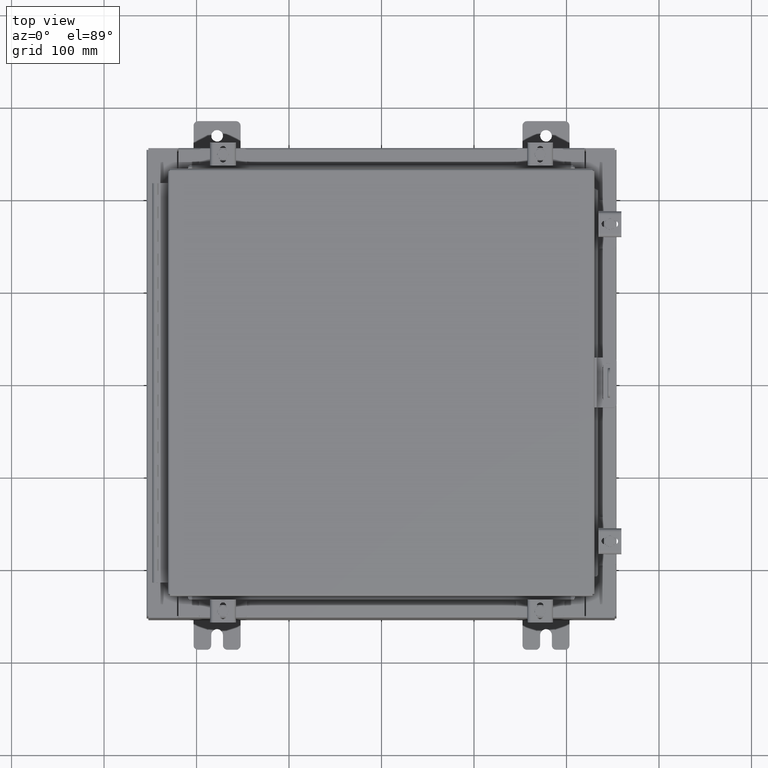
[diagram: clean part render]
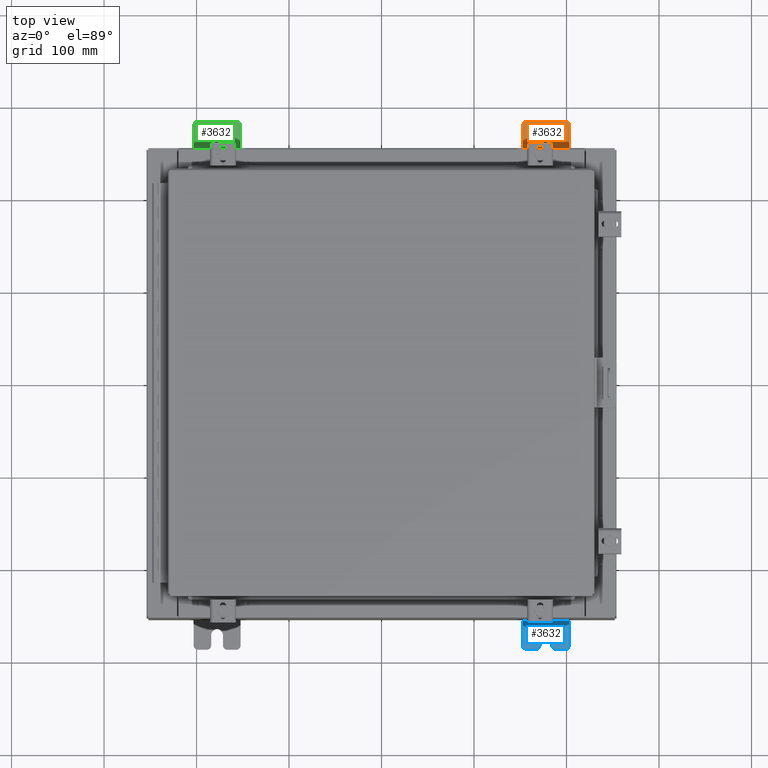
[diagram: same view with three faces highlighted in distinct colors, each labeled with its STEP entity id]
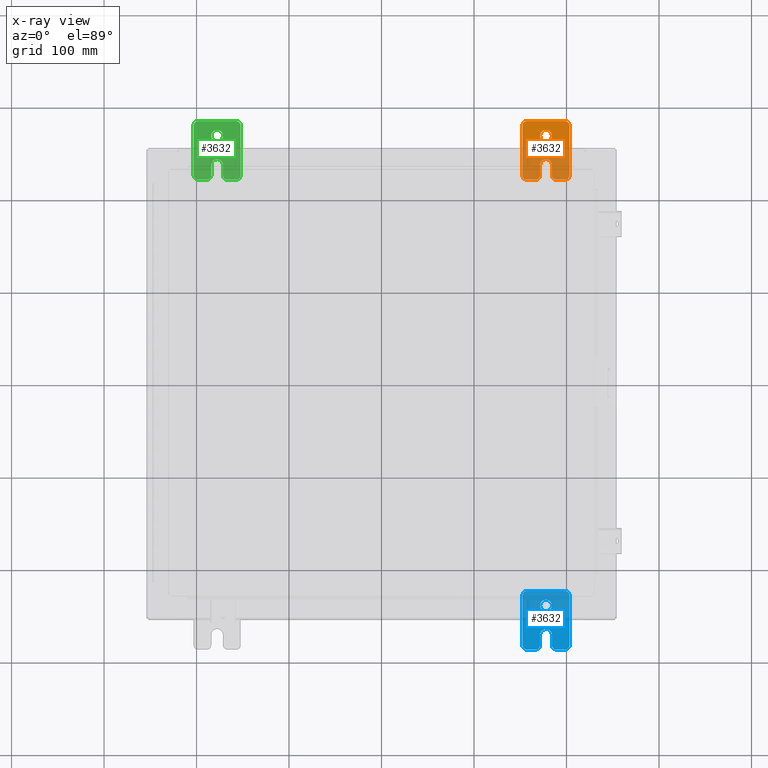
[diagram: x-ray of the same camera — body ghosted, the three highlighted faces saturated]
A machine part, top view with three faces highlighted in distinct colors.
The next image is the same camera in x-ray (body ghosted, the three faces saturated) — at least one of them is partly hidden behind the body in this view.
Their STEP definitions:

[orange] entity #3632 — the highlighted planar face has unit normal (0, 0, 1).
#15 = DIRECTION ( 'NONE',  ( 1.000000000000000000, 0.0000000000000000000, -0.0000000000000000000 ) ) ;
#101 = DIRECTION ( 'NONE',  ( 0.0000000000000000000, 0.0000000000000000000, -1.000000000000000000 ) ) ;
#563 = LINE ( 'NONE', #3060, #17996 ) ;
#847 = ORIENTED_EDGE ( 'NONE', *, *, #6853, .T. ) ;
#905 = VERTEX_POINT ( 'NONE', #1507 ) ;
#1339 = ORIENTED_EDGE ( 'NONE', *, *, #23860, .T. ) ;
#1507 = CARTESIAN_POINT ( 'NONE',  ( 0.0000000000000000000, 1.059999999999993400, -1.000000000000010000 ) ) ;
#1634 = LINE ( 'NONE', #6236, #13004 ) ;
#1865 = DIRECTION ( 'NONE',  ( -5.163192708025533800E-017, 0.0000000000000000000, -1.000000000000000000 ) ) ;
#1908 = ORIENTED_EDGE ( 'NONE', *, *, #14098, .T. ) ;
#1914 = CIRCLE ( 'NONE', #7391, 0.1900000000000011100 ) ;
#2065 = CARTESIAN_POINT ( 'NONE',  ( 1.928684683526972300E-016, -1.060000000000002100, 0.2500000000000005000 ) ) ;
#2152 = CARTESIAN_POINT ( 'NONE',  ( 0.0000000000000000000, -1.060000000000004100, -0.8100000000000050500 ) ) ;
#2345 = CARTESIAN_POINT ( 'NONE',  ( 4.168508244714285900E-016, 0.6249999999999992200, 0.2499999999999999200 ) ) ;
#2986 = CIRCLE ( 'NONE', #20206, 0.1900000000000011100 ) ;
#3060 = CARTESIAN_POINT ( 'NONE',  ( 0.0000000000000000000, 1.249999999999994200, -1.000000000000010400 ) ) ;
#3444 = EDGE_CURVE ( 'NONE', #13252, #13292, #9977, .T. ) ;
#3616 = VECTOR ( 'NONE', #25532, 39.37007874015748100 ) ;
#3632 = ADVANCED_FACE ( 'NONE', ( #10994, #23800 ), #20528, .T. ) ;
#3832 = CIRCLE ( 'NONE', #28931, 0.2499999999999999200 ) ;
#4242 = EDGE_CURVE ( 'NONE', #5914, #905, #28417, .T. ) ;
#4278 = CARTESIAN_POINT ( 'NONE',  ( 0.0000000000000000000, -1.250000000000005300, -0.8100000000000047200 ) ) ;
#4460 = DIRECTION ( 'NONE',  ( 0.0000000000000000000, 0.0000000000000000000, -1.000000000000000000 ) ) ;
#4536 = EDGE_CURVE ( 'NONE', #13292, #24612, #9925, .T. ) ;
#4547 = CARTESIAN_POINT ( 'NONE',  ( 0.0000000000000000000, -1.060000000000004500, -1.000000000000006400 ) ) ;
#4579 = AXIS2_PLACEMENT_3D ( 'NONE', #13151, #10888, #10790 ) ;
#4826 = CIRCLE ( 'NONE', #21546, 0.1900000000000011100 ) ;
#5017 = ORIENTED_EDGE ( 'NONE', *, *, #4242, .T. ) ;
#5263 = EDGE_CURVE ( 'NONE', #26837, #27820, #10912, .T. ) ;
#5412 = VERTEX_POINT ( 'NONE', #15546 ) ;
#5712 = VECTOR ( 'NONE', #16696, 39.37007874015748100 ) ;
#5814 = DIRECTION ( 'NONE',  ( 1.000000000000000000, 0.0000000000000000000, -0.0000000000000000000 ) ) ;
#5914 = VERTEX_POINT ( 'NONE', #4547 ) ;
#5928 = CIRCLE ( 'NONE', #22769, 0.2499999999999999200 ) ;
#6133 = DIRECTION ( 'NONE',  ( 6.556435184794182400E-016, 1.000000000000000000, 0.0000000000000000000 ) ) ;
#6236 = CARTESIAN_POINT ( 'NONE',  ( 6.829619984160658000E-017, -1.250000000000003800, 0.2500000000000005000 ) ) ;
#6301 = VERTEX_POINT ( 'NONE', #21330 ) ;
#6708 = AXIS2_PLACEMENT_3D ( 'NONE', #29111, #15473, #1865 ) ;
#6853 = EDGE_CURVE ( 'NONE', #22058, #19153, #17764, .T. ) ;
#7190 = VERTEX_POINT ( 'NONE', #2065 ) ;
#7385 = DIRECTION ( 'NONE',  ( -1.000000000000000000, 6.523827964459549700E-016, 5.163192708025532000E-017 ) ) ;
#7391 = AXIS2_PLACEMENT_3D ( 'NONE', #13628, #15, #15936 ) ;
#8069 = ORIENTED_EDGE ( 'NONE', *, *, #15662, .T. ) ;
#8387 = VERTEX_POINT ( 'NONE', #24070 ) ;
#9654 = LINE ( 'NONE', #18154, #27039 ) ;
#9683 = LINE ( 'NONE', #21086, #3616 ) ;
#9925 = CIRCLE ( 'NONE', #4579, 0.1900000000000011100 ) ;
#9977 = LINE ( 'NONE', #15508, #21338 ) ;
#10293 = VECTOR ( 'NONE', #27142, 39.37007874015748100 ) ;
#10790 = DIRECTION ( 'NONE',  ( 0.0000000000000000000, 0.0000000000000000000, -1.000000000000000000 ) ) ;
#10888 = DIRECTION ( 'NONE',  ( 1.000000000000000000, 0.0000000000000000000, -0.0000000000000000000 ) ) ;
#10912 = CIRCLE ( 'NONE', #6708, 0.2499999999999999200 ) ;
#10994 = FACE_BOUND ( 'NONE', #14273, .T. ) ;
#11596 = EDGE_CURVE ( 'NONE', #21358, #22058, #1914, .T. ) ;
#11985 = VERTEX_POINT ( 'NONE', #4278 ) ;
#12088 = DIRECTION ( 'NONE',  ( 1.000000000000000000, 0.0000000000000000000, -0.0000000000000000000 ) ) ;
#12451 = CIRCLE ( 'NONE', #28836, 0.1900000000000011400 ) ;
#12768 = CARTESIAN_POINT ( 'NONE',  ( 0.0000000000000000000, 0.0000000000000000000, 0.0000000000000000000 ) ) ;
#12904 = DIRECTION ( 'NONE',  ( 1.000000000000000000, -0.0000000000000000000, -5.163192708025532000E-017 ) ) ;
#13004 = VECTOR ( 'NONE', #6133, 39.37007874015748100 ) ;
#13151 = CARTESIAN_POINT ( 'NONE',  ( 0.0000000000000000000, -1.060000000000003400, -0.4400000000000005000 ) ) ;
#13252 = VERTEX_POINT ( 'NONE', #24854 ) ;
#13292 = VERTEX_POINT ( 'NONE', #18212 ) ;
#13628 = CARTESIAN_POINT ( 'NONE',  ( 0.0000000000000000000, -1.060000000000001600, 0.8099999999999978300 ) ) ;
#13721 = DIRECTION ( 'NONE',  ( 1.000000000000000000, 0.0000000000000000000, -0.0000000000000000000 ) ) ;
#14098 = EDGE_CURVE ( 'NONE', #8387, #21358, #9683, .T. ) ;
#14273 = EDGE_LOOP ( 'NONE', ( #14817, #20512 ) ) ;
#14374 = CARTESIAN_POINT ( 'NONE',  ( 0.0000000000000000000, -1.250000000000004700, -0.4400000000000002200 ) ) ;
#14515 = DIRECTION ( 'NONE',  ( -6.556435184794182400E-016, -1.000000000000000000, -1.639108796198545600E-016 ) ) ;
#14597 = EDGE_CURVE ( 'NONE', #24612, #11985, #9654, .T. ) ;
#14817 = ORIENTED_EDGE ( 'NONE', *, *, #28301, .F. ) ;
#15473 = DIRECTION ( 'NONE',  ( 1.000000000000000000, -0.0000000000000000000, -5.163192708025532000E-017 ) ) ;
#15508 = CARTESIAN_POINT ( 'NONE',  ( 4.780733988912460100E-016, -0.6249999999999993300, -0.2499999999999993900 ) ) ;
#15546 = CARTESIAN_POINT ( 'NONE',  ( 0.0000000000000000000, 1.249999999999997300, 0.8099999999999935000 ) ) ;
#15662 = EDGE_CURVE ( 'NONE', #5412, #8387, #19531, .T. ) ;
#15936 = DIRECTION ( 'NONE',  ( 0.0000000000000000000, 0.0000000000000000000, -1.000000000000000000 ) ) ;
#16696 = DIRECTION ( 'NONE',  ( 0.0000000000000000000, -1.639108796198553600E-015, -1.000000000000000000 ) ) ;
#17130 = EDGE_CURVE ( 'NONE', #26738, #5412, #563, .T. ) ;
#17187 = ORIENTED_EDGE ( 'NONE', *, *, #17363, .T. ) ;
#17198 = ORIENTED_EDGE ( 'NONE', *, *, #29524, .T. ) ;
#17219 = DIRECTION ( 'NONE',  ( 1.000000000000000000, 0.0000000000000000000, -0.0000000000000000000 ) ) ;
#17340 = ORIENTED_EDGE ( 'NONE', *, *, #14597, .T. ) ;
#17363 = EDGE_CURVE ( 'NONE', #7190, #6301, #1634, .T. ) ;
#17412 = DIRECTION ( 'NONE',  ( -0.0000000000000000000, 0.0000000000000000000, -1.000000000000000000 ) ) ;
#17764 = LINE ( 'NONE', #18892, #5712 ) ;
#17837 = CARTESIAN_POINT ( 'NONE',  ( 0.0000000000000000000, 1.249999999999994700, -0.8100000000000092700 ) ) ;
#17981 = CARTESIAN_POINT ( 'NONE',  ( 3.910348609313009100E-016, 0.6249999999999992200, -0.2499999999999999200 ) ) ;
#17996 = VECTOR ( 'NONE', #28020, 39.37007874015748100 ) ;
#18066 = DIRECTION ( 'NONE',  ( 1.000000000000000000, 0.0000000000000000000, -0.0000000000000000000 ) ) ;
#18154 = CARTESIAN_POINT ( 'NONE',  ( 0.0000000000000000000, -1.250000000000002200, 0.9999999999999992200 ) ) ;
#18212 = CARTESIAN_POINT ( 'NONE',  ( 1.928684683526964400E-016, -1.060000000000003400, -0.2499999999999994400 ) ) ;
#18251 = ORIENTED_EDGE ( 'NONE', *, *, #11596, .T. ) ;
#18552 = ORIENTED_EDGE ( 'NONE', *, *, #3444, .T. ) ;
#18892 = CARTESIAN_POINT ( 'NONE',  ( 0.0000000000000000000, -1.250000000000002200, 0.9999999999999992200 ) ) ;
#18911 = EDGE_LOOP ( 'NONE', ( #1908, #18251, #847, #23576, #17187, #1339, #18552, #28926, #17340, #17198, #5017, #29404, #27372, #8069 ) ) ;
#19153 = VERTEX_POINT ( 'NONE', #19330 ) ;
#19330 = CARTESIAN_POINT ( 'NONE',  ( 0.0000000000000000000, -1.250000000000003100, 0.4400000000000020000 ) ) ;
#19432 = CARTESIAN_POINT ( 'NONE',  ( 0.0000000000000000000, 1.059999999999996300, 0.8099999999999938400 ) ) ;
#19458 = EDGE_CURVE ( 'NONE', #905, #26738, #2986, .T. ) ;
#19531 = CIRCLE ( 'NONE', #28726, 0.1900000000000011100 ) ;
#19755 = CARTESIAN_POINT ( 'NONE',  ( 0.0000000000000000000, -1.060000000000001200, 0.9999999999999988900 ) ) ;
#20206 = AXIS2_PLACEMENT_3D ( 'NONE', #27365, #13721, #101 ) ;
#20512 = ORIENTED_EDGE ( 'NONE', *, *, #5263, .F. ) ;
#20528 = PLANE ( 'NONE',  #24704 ) ;
#21012 = CARTESIAN_POINT ( 'NONE',  ( 4.780733988912460100E-016, -0.6249999999999993300, 5.858939755051854500E-017 ) ) ;
#21086 = CARTESIAN_POINT ( 'NONE',  ( 0.0000000000000000000, 1.249999999999997600, 0.9999999999999951200 ) ) ;
#21330 = CARTESIAN_POINT ( 'NONE',  ( 0.0000000000000000000, -0.6249999999999992200, 0.2500000000000005000 ) ) ;
#21338 = VECTOR ( 'NONE', #14515, 39.37007874015748100 ) ;
#21358 = VERTEX_POINT ( 'NONE', #19755 ) ;
#21546 = AXIS2_PLACEMENT_3D ( 'NONE', #2152, #18066, #4460 ) ;
#21711 = EDGE_CURVE ( 'NONE', #19153, #7190, #12451, .T. ) ;
#21720 = DIRECTION ( 'NONE',  ( 0.0000000000000000000, 0.0000000000000000000, -1.000000000000000000 ) ) ;
#22058 = VERTEX_POINT ( 'NONE', #29266 ) ;
#22769 = AXIS2_PLACEMENT_3D ( 'NONE', #21012, #7385, #23265 ) ;
#23265 = DIRECTION ( 'NONE',  ( -6.523827964459551700E-016, -1.000000000000000000, 0.0000000000000000000 ) ) ;
#23576 = ORIENTED_EDGE ( 'NONE', *, *, #21711, .T. ) ;
#23800 = FACE_OUTER_BOUND ( 'NONE', #18911, .T. ) ;
#23860 = EDGE_CURVE ( 'NONE', #6301, #13252, #5928, .T. ) ;
#24070 = CARTESIAN_POINT ( 'NONE',  ( 0.0000000000000000000, 1.059999999999996500, 0.9999999999999953400 ) ) ;
#24612 = VERTEX_POINT ( 'NONE', #14374 ) ;
#24704 = AXIS2_PLACEMENT_3D ( 'NONE', #12768, #17219, #17412 ) ;
#24854 = CARTESIAN_POINT ( 'NONE',  ( 4.780733988912460100E-016, -0.6249999999999993300, -0.2499999999999998600 ) ) ;
#25002 = DIRECTION ( 'NONE',  ( 0.0000000000000000000, -1.639108796198553600E-015, -1.000000000000000000 ) ) ;
#25532 = DIRECTION ( 'NONE',  ( 0.0000000000000000000, -1.000000000000000000, 1.639108796198558100E-015 ) ) ;
#25664 = CARTESIAN_POINT ( 'NONE',  ( 0.0000000000000000000, -1.060000000000002100, 0.4400000000000016700 ) ) ;
#26515 = CARTESIAN_POINT ( 'NONE',  ( 4.039428427013647300E-016, 0.6249999999999992200, -9.783840404509077400E-018 ) ) ;
#26738 = VERTEX_POINT ( 'NONE', #17837 ) ;
#26837 = VERTEX_POINT ( 'NONE', #2345 ) ;
#27039 = VECTOR ( 'NONE', #25002, 39.37007874015748100 ) ;
#27142 = DIRECTION ( 'NONE',  ( 0.0000000000000000000, 1.000000000000000000, -1.639108796198558100E-015 ) ) ;
#27365 = CARTESIAN_POINT ( 'NONE',  ( 0.0000000000000000000, 1.059999999999993600, -0.8100000000000089400 ) ) ;
#27372 = ORIENTED_EDGE ( 'NONE', *, *, #17130, .T. ) ;
#27820 = VERTEX_POINT ( 'NONE', #17981 ) ;
#27992 = DIRECTION ( 'NONE',  ( 0.0000000000000000000, 0.0000000000000000000, -1.000000000000000000 ) ) ;
#28020 = DIRECTION ( 'NONE',  ( 0.0000000000000000000, 1.639108796198553600E-015, 1.000000000000000000 ) ) ;
#28301 = EDGE_CURVE ( 'NONE', #27820, #26837, #3832, .T. ) ;
#28417 = LINE ( 'NONE', #28945, #10293 ) ;
#28726 = AXIS2_PLACEMENT_3D ( 'NONE', #19432, #5814, #21720 ) ;
#28815 = DIRECTION ( 'NONE',  ( -5.163192708025533800E-017, 0.0000000000000000000, -1.000000000000000000 ) ) ;
#28836 = AXIS2_PLACEMENT_3D ( 'NONE', #25664, #12088, #27992 ) ;
#28926 = ORIENTED_EDGE ( 'NONE', *, *, #4536, .T. ) ;
#28931 = AXIS2_PLACEMENT_3D ( 'NONE', #26515, #12904, #28815 ) ;
#28945 = CARTESIAN_POINT ( 'NONE',  ( 0.0000000000000000000, -1.250000000000005600, -1.000000000000006200 ) ) ;
#29111 = CARTESIAN_POINT ( 'NONE',  ( 4.039428427013647300E-016, 0.6249999999999992200, -9.783840404509077400E-018 ) ) ;
#29266 = CARTESIAN_POINT ( 'NONE',  ( 0.0000000000000000000, -1.250000000000002400, 0.8099999999999980500 ) ) ;
#29404 = ORIENTED_EDGE ( 'NONE', *, *, #19458, .T. ) ;
#29524 = EDGE_CURVE ( 'NONE', #11985, #5914, #4826, .T. ) ;

[blue] entity #3632 — the highlighted planar face has unit normal (0, 0, 1).
#15 = DIRECTION ( 'NONE',  ( 1.000000000000000000, 0.0000000000000000000, -0.0000000000000000000 ) ) ;
#101 = DIRECTION ( 'NONE',  ( 0.0000000000000000000, 0.0000000000000000000, -1.000000000000000000 ) ) ;
#563 = LINE ( 'NONE', #3060, #17996 ) ;
#847 = ORIENTED_EDGE ( 'NONE', *, *, #6853, .T. ) ;
#905 = VERTEX_POINT ( 'NONE', #1507 ) ;
#1339 = ORIENTED_EDGE ( 'NONE', *, *, #23860, .T. ) ;
#1507 = CARTESIAN_POINT ( 'NONE',  ( 0.0000000000000000000, 1.059999999999993400, -1.000000000000010000 ) ) ;
#1634 = LINE ( 'NONE', #6236, #13004 ) ;
#1865 = DIRECTION ( 'NONE',  ( -5.163192708025533800E-017, 0.0000000000000000000, -1.000000000000000000 ) ) ;
#1908 = ORIENTED_EDGE ( 'NONE', *, *, #14098, .T. ) ;
#1914 = CIRCLE ( 'NONE', #7391, 0.1900000000000011100 ) ;
#2065 = CARTESIAN_POINT ( 'NONE',  ( 1.928684683526972300E-016, -1.060000000000002100, 0.2500000000000005000 ) ) ;
#2152 = CARTESIAN_POINT ( 'NONE',  ( 0.0000000000000000000, -1.060000000000004100, -0.8100000000000050500 ) ) ;
#2345 = CARTESIAN_POINT ( 'NONE',  ( 4.168508244714285900E-016, 0.6249999999999992200, 0.2499999999999999200 ) ) ;
#2986 = CIRCLE ( 'NONE', #20206, 0.1900000000000011100 ) ;
#3060 = CARTESIAN_POINT ( 'NONE',  ( 0.0000000000000000000, 1.249999999999994200, -1.000000000000010400 ) ) ;
#3444 = EDGE_CURVE ( 'NONE', #13252, #13292, #9977, .T. ) ;
#3616 = VECTOR ( 'NONE', #25532, 39.37007874015748100 ) ;
#3632 = ADVANCED_FACE ( 'NONE', ( #10994, #23800 ), #20528, .T. ) ;
#3832 = CIRCLE ( 'NONE', #28931, 0.2499999999999999200 ) ;
#4242 = EDGE_CURVE ( 'NONE', #5914, #905, #28417, .T. ) ;
#4278 = CARTESIAN_POINT ( 'NONE',  ( 0.0000000000000000000, -1.250000000000005300, -0.8100000000000047200 ) ) ;
#4460 = DIRECTION ( 'NONE',  ( 0.0000000000000000000, 0.0000000000000000000, -1.000000000000000000 ) ) ;
#4536 = EDGE_CURVE ( 'NONE', #13292, #24612, #9925, .T. ) ;
#4547 = CARTESIAN_POINT ( 'NONE',  ( 0.0000000000000000000, -1.060000000000004500, -1.000000000000006400 ) ) ;
#4579 = AXIS2_PLACEMENT_3D ( 'NONE', #13151, #10888, #10790 ) ;
#4826 = CIRCLE ( 'NONE', #21546, 0.1900000000000011100 ) ;
#5017 = ORIENTED_EDGE ( 'NONE', *, *, #4242, .T. ) ;
#5263 = EDGE_CURVE ( 'NONE', #26837, #27820, #10912, .T. ) ;
#5412 = VERTEX_POINT ( 'NONE', #15546 ) ;
#5712 = VECTOR ( 'NONE', #16696, 39.37007874015748100 ) ;
#5814 = DIRECTION ( 'NONE',  ( 1.000000000000000000, 0.0000000000000000000, -0.0000000000000000000 ) ) ;
#5914 = VERTEX_POINT ( 'NONE', #4547 ) ;
#5928 = CIRCLE ( 'NONE', #22769, 0.2499999999999999200 ) ;
#6133 = DIRECTION ( 'NONE',  ( 6.556435184794182400E-016, 1.000000000000000000, 0.0000000000000000000 ) ) ;
#6236 = CARTESIAN_POINT ( 'NONE',  ( 6.829619984160658000E-017, -1.250000000000003800, 0.2500000000000005000 ) ) ;
#6301 = VERTEX_POINT ( 'NONE', #21330 ) ;
#6708 = AXIS2_PLACEMENT_3D ( 'NONE', #29111, #15473, #1865 ) ;
#6853 = EDGE_CURVE ( 'NONE', #22058, #19153, #17764, .T. ) ;
#7190 = VERTEX_POINT ( 'NONE', #2065 ) ;
#7385 = DIRECTION ( 'NONE',  ( -1.000000000000000000, 6.523827964459549700E-016, 5.163192708025532000E-017 ) ) ;
#7391 = AXIS2_PLACEMENT_3D ( 'NONE', #13628, #15, #15936 ) ;
#8069 = ORIENTED_EDGE ( 'NONE', *, *, #15662, .T. ) ;
#8387 = VERTEX_POINT ( 'NONE', #24070 ) ;
#9654 = LINE ( 'NONE', #18154, #27039 ) ;
#9683 = LINE ( 'NONE', #21086, #3616 ) ;
#9925 = CIRCLE ( 'NONE', #4579, 0.1900000000000011100 ) ;
#9977 = LINE ( 'NONE', #15508, #21338 ) ;
#10293 = VECTOR ( 'NONE', #27142, 39.37007874015748100 ) ;
#10790 = DIRECTION ( 'NONE',  ( 0.0000000000000000000, 0.0000000000000000000, -1.000000000000000000 ) ) ;
#10888 = DIRECTION ( 'NONE',  ( 1.000000000000000000, 0.0000000000000000000, -0.0000000000000000000 ) ) ;
#10912 = CIRCLE ( 'NONE', #6708, 0.2499999999999999200 ) ;
#10994 = FACE_BOUND ( 'NONE', #14273, .T. ) ;
#11596 = EDGE_CURVE ( 'NONE', #21358, #22058, #1914, .T. ) ;
#11985 = VERTEX_POINT ( 'NONE', #4278 ) ;
#12088 = DIRECTION ( 'NONE',  ( 1.000000000000000000, 0.0000000000000000000, -0.0000000000000000000 ) ) ;
#12451 = CIRCLE ( 'NONE', #28836, 0.1900000000000011400 ) ;
#12768 = CARTESIAN_POINT ( 'NONE',  ( 0.0000000000000000000, 0.0000000000000000000, 0.0000000000000000000 ) ) ;
#12904 = DIRECTION ( 'NONE',  ( 1.000000000000000000, -0.0000000000000000000, -5.163192708025532000E-017 ) ) ;
#13004 = VECTOR ( 'NONE', #6133, 39.37007874015748100 ) ;
#13151 = CARTESIAN_POINT ( 'NONE',  ( 0.0000000000000000000, -1.060000000000003400, -0.4400000000000005000 ) ) ;
#13252 = VERTEX_POINT ( 'NONE', #24854 ) ;
#13292 = VERTEX_POINT ( 'NONE', #18212 ) ;
#13628 = CARTESIAN_POINT ( 'NONE',  ( 0.0000000000000000000, -1.060000000000001600, 0.8099999999999978300 ) ) ;
#13721 = DIRECTION ( 'NONE',  ( 1.000000000000000000, 0.0000000000000000000, -0.0000000000000000000 ) ) ;
#14098 = EDGE_CURVE ( 'NONE', #8387, #21358, #9683, .T. ) ;
#14273 = EDGE_LOOP ( 'NONE', ( #14817, #20512 ) ) ;
#14374 = CARTESIAN_POINT ( 'NONE',  ( 0.0000000000000000000, -1.250000000000004700, -0.4400000000000002200 ) ) ;
#14515 = DIRECTION ( 'NONE',  ( -6.556435184794182400E-016, -1.000000000000000000, -1.639108796198545600E-016 ) ) ;
#14597 = EDGE_CURVE ( 'NONE', #24612, #11985, #9654, .T. ) ;
#14817 = ORIENTED_EDGE ( 'NONE', *, *, #28301, .F. ) ;
#15473 = DIRECTION ( 'NONE',  ( 1.000000000000000000, -0.0000000000000000000, -5.163192708025532000E-017 ) ) ;
#15508 = CARTESIAN_POINT ( 'NONE',  ( 4.780733988912460100E-016, -0.6249999999999993300, -0.2499999999999993900 ) ) ;
#15546 = CARTESIAN_POINT ( 'NONE',  ( 0.0000000000000000000, 1.249999999999997300, 0.8099999999999935000 ) ) ;
#15662 = EDGE_CURVE ( 'NONE', #5412, #8387, #19531, .T. ) ;
#15936 = DIRECTION ( 'NONE',  ( 0.0000000000000000000, 0.0000000000000000000, -1.000000000000000000 ) ) ;
#16696 = DIRECTION ( 'NONE',  ( 0.0000000000000000000, -1.639108796198553600E-015, -1.000000000000000000 ) ) ;
#17130 = EDGE_CURVE ( 'NONE', #26738, #5412, #563, .T. ) ;
#17187 = ORIENTED_EDGE ( 'NONE', *, *, #17363, .T. ) ;
#17198 = ORIENTED_EDGE ( 'NONE', *, *, #29524, .T. ) ;
#17219 = DIRECTION ( 'NONE',  ( 1.000000000000000000, 0.0000000000000000000, -0.0000000000000000000 ) ) ;
#17340 = ORIENTED_EDGE ( 'NONE', *, *, #14597, .T. ) ;
#17363 = EDGE_CURVE ( 'NONE', #7190, #6301, #1634, .T. ) ;
#17412 = DIRECTION ( 'NONE',  ( -0.0000000000000000000, 0.0000000000000000000, -1.000000000000000000 ) ) ;
#17764 = LINE ( 'NONE', #18892, #5712 ) ;
#17837 = CARTESIAN_POINT ( 'NONE',  ( 0.0000000000000000000, 1.249999999999994700, -0.8100000000000092700 ) ) ;
#17981 = CARTESIAN_POINT ( 'NONE',  ( 3.910348609313009100E-016, 0.6249999999999992200, -0.2499999999999999200 ) ) ;
#17996 = VECTOR ( 'NONE', #28020, 39.37007874015748100 ) ;
#18066 = DIRECTION ( 'NONE',  ( 1.000000000000000000, 0.0000000000000000000, -0.0000000000000000000 ) ) ;
#18154 = CARTESIAN_POINT ( 'NONE',  ( 0.0000000000000000000, -1.250000000000002200, 0.9999999999999992200 ) ) ;
#18212 = CARTESIAN_POINT ( 'NONE',  ( 1.928684683526964400E-016, -1.060000000000003400, -0.2499999999999994400 ) ) ;
#18251 = ORIENTED_EDGE ( 'NONE', *, *, #11596, .T. ) ;
#18552 = ORIENTED_EDGE ( 'NONE', *, *, #3444, .T. ) ;
#18892 = CARTESIAN_POINT ( 'NONE',  ( 0.0000000000000000000, -1.250000000000002200, 0.9999999999999992200 ) ) ;
#18911 = EDGE_LOOP ( 'NONE', ( #1908, #18251, #847, #23576, #17187, #1339, #18552, #28926, #17340, #17198, #5017, #29404, #27372, #8069 ) ) ;
#19153 = VERTEX_POINT ( 'NONE', #19330 ) ;
#19330 = CARTESIAN_POINT ( 'NONE',  ( 0.0000000000000000000, -1.250000000000003100, 0.4400000000000020000 ) ) ;
#19432 = CARTESIAN_POINT ( 'NONE',  ( 0.0000000000000000000, 1.059999999999996300, 0.8099999999999938400 ) ) ;
#19458 = EDGE_CURVE ( 'NONE', #905, #26738, #2986, .T. ) ;
#19531 = CIRCLE ( 'NONE', #28726, 0.1900000000000011100 ) ;
#19755 = CARTESIAN_POINT ( 'NONE',  ( 0.0000000000000000000, -1.060000000000001200, 0.9999999999999988900 ) ) ;
#20206 = AXIS2_PLACEMENT_3D ( 'NONE', #27365, #13721, #101 ) ;
#20512 = ORIENTED_EDGE ( 'NONE', *, *, #5263, .F. ) ;
#20528 = PLANE ( 'NONE',  #24704 ) ;
#21012 = CARTESIAN_POINT ( 'NONE',  ( 4.780733988912460100E-016, -0.6249999999999993300, 5.858939755051854500E-017 ) ) ;
#21086 = CARTESIAN_POINT ( 'NONE',  ( 0.0000000000000000000, 1.249999999999997600, 0.9999999999999951200 ) ) ;
#21330 = CARTESIAN_POINT ( 'NONE',  ( 0.0000000000000000000, -0.6249999999999992200, 0.2500000000000005000 ) ) ;
#21338 = VECTOR ( 'NONE', #14515, 39.37007874015748100 ) ;
#21358 = VERTEX_POINT ( 'NONE', #19755 ) ;
#21546 = AXIS2_PLACEMENT_3D ( 'NONE', #2152, #18066, #4460 ) ;
#21711 = EDGE_CURVE ( 'NONE', #19153, #7190, #12451, .T. ) ;
#21720 = DIRECTION ( 'NONE',  ( 0.0000000000000000000, 0.0000000000000000000, -1.000000000000000000 ) ) ;
#22058 = VERTEX_POINT ( 'NONE', #29266 ) ;
#22769 = AXIS2_PLACEMENT_3D ( 'NONE', #21012, #7385, #23265 ) ;
#23265 = DIRECTION ( 'NONE',  ( -6.523827964459551700E-016, -1.000000000000000000, 0.0000000000000000000 ) ) ;
#23576 = ORIENTED_EDGE ( 'NONE', *, *, #21711, .T. ) ;
#23800 = FACE_OUTER_BOUND ( 'NONE', #18911, .T. ) ;
#23860 = EDGE_CURVE ( 'NONE', #6301, #13252, #5928, .T. ) ;
#24070 = CARTESIAN_POINT ( 'NONE',  ( 0.0000000000000000000, 1.059999999999996500, 0.9999999999999953400 ) ) ;
#24612 = VERTEX_POINT ( 'NONE', #14374 ) ;
#24704 = AXIS2_PLACEMENT_3D ( 'NONE', #12768, #17219, #17412 ) ;
#24854 = CARTESIAN_POINT ( 'NONE',  ( 4.780733988912460100E-016, -0.6249999999999993300, -0.2499999999999998600 ) ) ;
#25002 = DIRECTION ( 'NONE',  ( 0.0000000000000000000, -1.639108796198553600E-015, -1.000000000000000000 ) ) ;
#25532 = DIRECTION ( 'NONE',  ( 0.0000000000000000000, -1.000000000000000000, 1.639108796198558100E-015 ) ) ;
#25664 = CARTESIAN_POINT ( 'NONE',  ( 0.0000000000000000000, -1.060000000000002100, 0.4400000000000016700 ) ) ;
#26515 = CARTESIAN_POINT ( 'NONE',  ( 4.039428427013647300E-016, 0.6249999999999992200, -9.783840404509077400E-018 ) ) ;
#26738 = VERTEX_POINT ( 'NONE', #17837 ) ;
#26837 = VERTEX_POINT ( 'NONE', #2345 ) ;
#27039 = VECTOR ( 'NONE', #25002, 39.37007874015748100 ) ;
#27142 = DIRECTION ( 'NONE',  ( 0.0000000000000000000, 1.000000000000000000, -1.639108796198558100E-015 ) ) ;
#27365 = CARTESIAN_POINT ( 'NONE',  ( 0.0000000000000000000, 1.059999999999993600, -0.8100000000000089400 ) ) ;
#27372 = ORIENTED_EDGE ( 'NONE', *, *, #17130, .T. ) ;
#27820 = VERTEX_POINT ( 'NONE', #17981 ) ;
#27992 = DIRECTION ( 'NONE',  ( 0.0000000000000000000, 0.0000000000000000000, -1.000000000000000000 ) ) ;
#28020 = DIRECTION ( 'NONE',  ( 0.0000000000000000000, 1.639108796198553600E-015, 1.000000000000000000 ) ) ;
#28301 = EDGE_CURVE ( 'NONE', #27820, #26837, #3832, .T. ) ;
#28417 = LINE ( 'NONE', #28945, #10293 ) ;
#28726 = AXIS2_PLACEMENT_3D ( 'NONE', #19432, #5814, #21720 ) ;
#28815 = DIRECTION ( 'NONE',  ( -5.163192708025533800E-017, 0.0000000000000000000, -1.000000000000000000 ) ) ;
#28836 = AXIS2_PLACEMENT_3D ( 'NONE', #25664, #12088, #27992 ) ;
#28926 = ORIENTED_EDGE ( 'NONE', *, *, #4536, .T. ) ;
#28931 = AXIS2_PLACEMENT_3D ( 'NONE', #26515, #12904, #28815 ) ;
#28945 = CARTESIAN_POINT ( 'NONE',  ( 0.0000000000000000000, -1.250000000000005600, -1.000000000000006200 ) ) ;
#29111 = CARTESIAN_POINT ( 'NONE',  ( 4.039428427013647300E-016, 0.6249999999999992200, -9.783840404509077400E-018 ) ) ;
#29266 = CARTESIAN_POINT ( 'NONE',  ( 0.0000000000000000000, -1.250000000000002400, 0.8099999999999980500 ) ) ;
#29404 = ORIENTED_EDGE ( 'NONE', *, *, #19458, .T. ) ;
#29524 = EDGE_CURVE ( 'NONE', #11985, #5914, #4826, .T. ) ;

[green] entity #3632 — the highlighted planar face has unit normal (0, 0, 1).
#15 = DIRECTION ( 'NONE',  ( 1.000000000000000000, 0.0000000000000000000, -0.0000000000000000000 ) ) ;
#101 = DIRECTION ( 'NONE',  ( 0.0000000000000000000, 0.0000000000000000000, -1.000000000000000000 ) ) ;
#563 = LINE ( 'NONE', #3060, #17996 ) ;
#847 = ORIENTED_EDGE ( 'NONE', *, *, #6853, .T. ) ;
#905 = VERTEX_POINT ( 'NONE', #1507 ) ;
#1339 = ORIENTED_EDGE ( 'NONE', *, *, #23860, .T. ) ;
#1507 = CARTESIAN_POINT ( 'NONE',  ( 0.0000000000000000000, 1.059999999999993400, -1.000000000000010000 ) ) ;
#1634 = LINE ( 'NONE', #6236, #13004 ) ;
#1865 = DIRECTION ( 'NONE',  ( -5.163192708025533800E-017, 0.0000000000000000000, -1.000000000000000000 ) ) ;
#1908 = ORIENTED_EDGE ( 'NONE', *, *, #14098, .T. ) ;
#1914 = CIRCLE ( 'NONE', #7391, 0.1900000000000011100 ) ;
#2065 = CARTESIAN_POINT ( 'NONE',  ( 1.928684683526972300E-016, -1.060000000000002100, 0.2500000000000005000 ) ) ;
#2152 = CARTESIAN_POINT ( 'NONE',  ( 0.0000000000000000000, -1.060000000000004100, -0.8100000000000050500 ) ) ;
#2345 = CARTESIAN_POINT ( 'NONE',  ( 4.168508244714285900E-016, 0.6249999999999992200, 0.2499999999999999200 ) ) ;
#2986 = CIRCLE ( 'NONE', #20206, 0.1900000000000011100 ) ;
#3060 = CARTESIAN_POINT ( 'NONE',  ( 0.0000000000000000000, 1.249999999999994200, -1.000000000000010400 ) ) ;
#3444 = EDGE_CURVE ( 'NONE', #13252, #13292, #9977, .T. ) ;
#3616 = VECTOR ( 'NONE', #25532, 39.37007874015748100 ) ;
#3632 = ADVANCED_FACE ( 'NONE', ( #10994, #23800 ), #20528, .T. ) ;
#3832 = CIRCLE ( 'NONE', #28931, 0.2499999999999999200 ) ;
#4242 = EDGE_CURVE ( 'NONE', #5914, #905, #28417, .T. ) ;
#4278 = CARTESIAN_POINT ( 'NONE',  ( 0.0000000000000000000, -1.250000000000005300, -0.8100000000000047200 ) ) ;
#4460 = DIRECTION ( 'NONE',  ( 0.0000000000000000000, 0.0000000000000000000, -1.000000000000000000 ) ) ;
#4536 = EDGE_CURVE ( 'NONE', #13292, #24612, #9925, .T. ) ;
#4547 = CARTESIAN_POINT ( 'NONE',  ( 0.0000000000000000000, -1.060000000000004500, -1.000000000000006400 ) ) ;
#4579 = AXIS2_PLACEMENT_3D ( 'NONE', #13151, #10888, #10790 ) ;
#4826 = CIRCLE ( 'NONE', #21546, 0.1900000000000011100 ) ;
#5017 = ORIENTED_EDGE ( 'NONE', *, *, #4242, .T. ) ;
#5263 = EDGE_CURVE ( 'NONE', #26837, #27820, #10912, .T. ) ;
#5412 = VERTEX_POINT ( 'NONE', #15546 ) ;
#5712 = VECTOR ( 'NONE', #16696, 39.37007874015748100 ) ;
#5814 = DIRECTION ( 'NONE',  ( 1.000000000000000000, 0.0000000000000000000, -0.0000000000000000000 ) ) ;
#5914 = VERTEX_POINT ( 'NONE', #4547 ) ;
#5928 = CIRCLE ( 'NONE', #22769, 0.2499999999999999200 ) ;
#6133 = DIRECTION ( 'NONE',  ( 6.556435184794182400E-016, 1.000000000000000000, 0.0000000000000000000 ) ) ;
#6236 = CARTESIAN_POINT ( 'NONE',  ( 6.829619984160658000E-017, -1.250000000000003800, 0.2500000000000005000 ) ) ;
#6301 = VERTEX_POINT ( 'NONE', #21330 ) ;
#6708 = AXIS2_PLACEMENT_3D ( 'NONE', #29111, #15473, #1865 ) ;
#6853 = EDGE_CURVE ( 'NONE', #22058, #19153, #17764, .T. ) ;
#7190 = VERTEX_POINT ( 'NONE', #2065 ) ;
#7385 = DIRECTION ( 'NONE',  ( -1.000000000000000000, 6.523827964459549700E-016, 5.163192708025532000E-017 ) ) ;
#7391 = AXIS2_PLACEMENT_3D ( 'NONE', #13628, #15, #15936 ) ;
#8069 = ORIENTED_EDGE ( 'NONE', *, *, #15662, .T. ) ;
#8387 = VERTEX_POINT ( 'NONE', #24070 ) ;
#9654 = LINE ( 'NONE', #18154, #27039 ) ;
#9683 = LINE ( 'NONE', #21086, #3616 ) ;
#9925 = CIRCLE ( 'NONE', #4579, 0.1900000000000011100 ) ;
#9977 = LINE ( 'NONE', #15508, #21338 ) ;
#10293 = VECTOR ( 'NONE', #27142, 39.37007874015748100 ) ;
#10790 = DIRECTION ( 'NONE',  ( 0.0000000000000000000, 0.0000000000000000000, -1.000000000000000000 ) ) ;
#10888 = DIRECTION ( 'NONE',  ( 1.000000000000000000, 0.0000000000000000000, -0.0000000000000000000 ) ) ;
#10912 = CIRCLE ( 'NONE', #6708, 0.2499999999999999200 ) ;
#10994 = FACE_BOUND ( 'NONE', #14273, .T. ) ;
#11596 = EDGE_CURVE ( 'NONE', #21358, #22058, #1914, .T. ) ;
#11985 = VERTEX_POINT ( 'NONE', #4278 ) ;
#12088 = DIRECTION ( 'NONE',  ( 1.000000000000000000, 0.0000000000000000000, -0.0000000000000000000 ) ) ;
#12451 = CIRCLE ( 'NONE', #28836, 0.1900000000000011400 ) ;
#12768 = CARTESIAN_POINT ( 'NONE',  ( 0.0000000000000000000, 0.0000000000000000000, 0.0000000000000000000 ) ) ;
#12904 = DIRECTION ( 'NONE',  ( 1.000000000000000000, -0.0000000000000000000, -5.163192708025532000E-017 ) ) ;
#13004 = VECTOR ( 'NONE', #6133, 39.37007874015748100 ) ;
#13151 = CARTESIAN_POINT ( 'NONE',  ( 0.0000000000000000000, -1.060000000000003400, -0.4400000000000005000 ) ) ;
#13252 = VERTEX_POINT ( 'NONE', #24854 ) ;
#13292 = VERTEX_POINT ( 'NONE', #18212 ) ;
#13628 = CARTESIAN_POINT ( 'NONE',  ( 0.0000000000000000000, -1.060000000000001600, 0.8099999999999978300 ) ) ;
#13721 = DIRECTION ( 'NONE',  ( 1.000000000000000000, 0.0000000000000000000, -0.0000000000000000000 ) ) ;
#14098 = EDGE_CURVE ( 'NONE', #8387, #21358, #9683, .T. ) ;
#14273 = EDGE_LOOP ( 'NONE', ( #14817, #20512 ) ) ;
#14374 = CARTESIAN_POINT ( 'NONE',  ( 0.0000000000000000000, -1.250000000000004700, -0.4400000000000002200 ) ) ;
#14515 = DIRECTION ( 'NONE',  ( -6.556435184794182400E-016, -1.000000000000000000, -1.639108796198545600E-016 ) ) ;
#14597 = EDGE_CURVE ( 'NONE', #24612, #11985, #9654, .T. ) ;
#14817 = ORIENTED_EDGE ( 'NONE', *, *, #28301, .F. ) ;
#15473 = DIRECTION ( 'NONE',  ( 1.000000000000000000, -0.0000000000000000000, -5.163192708025532000E-017 ) ) ;
#15508 = CARTESIAN_POINT ( 'NONE',  ( 4.780733988912460100E-016, -0.6249999999999993300, -0.2499999999999993900 ) ) ;
#15546 = CARTESIAN_POINT ( 'NONE',  ( 0.0000000000000000000, 1.249999999999997300, 0.8099999999999935000 ) ) ;
#15662 = EDGE_CURVE ( 'NONE', #5412, #8387, #19531, .T. ) ;
#15936 = DIRECTION ( 'NONE',  ( 0.0000000000000000000, 0.0000000000000000000, -1.000000000000000000 ) ) ;
#16696 = DIRECTION ( 'NONE',  ( 0.0000000000000000000, -1.639108796198553600E-015, -1.000000000000000000 ) ) ;
#17130 = EDGE_CURVE ( 'NONE', #26738, #5412, #563, .T. ) ;
#17187 = ORIENTED_EDGE ( 'NONE', *, *, #17363, .T. ) ;
#17198 = ORIENTED_EDGE ( 'NONE', *, *, #29524, .T. ) ;
#17219 = DIRECTION ( 'NONE',  ( 1.000000000000000000, 0.0000000000000000000, -0.0000000000000000000 ) ) ;
#17340 = ORIENTED_EDGE ( 'NONE', *, *, #14597, .T. ) ;
#17363 = EDGE_CURVE ( 'NONE', #7190, #6301, #1634, .T. ) ;
#17412 = DIRECTION ( 'NONE',  ( -0.0000000000000000000, 0.0000000000000000000, -1.000000000000000000 ) ) ;
#17764 = LINE ( 'NONE', #18892, #5712 ) ;
#17837 = CARTESIAN_POINT ( 'NONE',  ( 0.0000000000000000000, 1.249999999999994700, -0.8100000000000092700 ) ) ;
#17981 = CARTESIAN_POINT ( 'NONE',  ( 3.910348609313009100E-016, 0.6249999999999992200, -0.2499999999999999200 ) ) ;
#17996 = VECTOR ( 'NONE', #28020, 39.37007874015748100 ) ;
#18066 = DIRECTION ( 'NONE',  ( 1.000000000000000000, 0.0000000000000000000, -0.0000000000000000000 ) ) ;
#18154 = CARTESIAN_POINT ( 'NONE',  ( 0.0000000000000000000, -1.250000000000002200, 0.9999999999999992200 ) ) ;
#18212 = CARTESIAN_POINT ( 'NONE',  ( 1.928684683526964400E-016, -1.060000000000003400, -0.2499999999999994400 ) ) ;
#18251 = ORIENTED_EDGE ( 'NONE', *, *, #11596, .T. ) ;
#18552 = ORIENTED_EDGE ( 'NONE', *, *, #3444, .T. ) ;
#18892 = CARTESIAN_POINT ( 'NONE',  ( 0.0000000000000000000, -1.250000000000002200, 0.9999999999999992200 ) ) ;
#18911 = EDGE_LOOP ( 'NONE', ( #1908, #18251, #847, #23576, #17187, #1339, #18552, #28926, #17340, #17198, #5017, #29404, #27372, #8069 ) ) ;
#19153 = VERTEX_POINT ( 'NONE', #19330 ) ;
#19330 = CARTESIAN_POINT ( 'NONE',  ( 0.0000000000000000000, -1.250000000000003100, 0.4400000000000020000 ) ) ;
#19432 = CARTESIAN_POINT ( 'NONE',  ( 0.0000000000000000000, 1.059999999999996300, 0.8099999999999938400 ) ) ;
#19458 = EDGE_CURVE ( 'NONE', #905, #26738, #2986, .T. ) ;
#19531 = CIRCLE ( 'NONE', #28726, 0.1900000000000011100 ) ;
#19755 = CARTESIAN_POINT ( 'NONE',  ( 0.0000000000000000000, -1.060000000000001200, 0.9999999999999988900 ) ) ;
#20206 = AXIS2_PLACEMENT_3D ( 'NONE', #27365, #13721, #101 ) ;
#20512 = ORIENTED_EDGE ( 'NONE', *, *, #5263, .F. ) ;
#20528 = PLANE ( 'NONE',  #24704 ) ;
#21012 = CARTESIAN_POINT ( 'NONE',  ( 4.780733988912460100E-016, -0.6249999999999993300, 5.858939755051854500E-017 ) ) ;
#21086 = CARTESIAN_POINT ( 'NONE',  ( 0.0000000000000000000, 1.249999999999997600, 0.9999999999999951200 ) ) ;
#21330 = CARTESIAN_POINT ( 'NONE',  ( 0.0000000000000000000, -0.6249999999999992200, 0.2500000000000005000 ) ) ;
#21338 = VECTOR ( 'NONE', #14515, 39.37007874015748100 ) ;
#21358 = VERTEX_POINT ( 'NONE', #19755 ) ;
#21546 = AXIS2_PLACEMENT_3D ( 'NONE', #2152, #18066, #4460 ) ;
#21711 = EDGE_CURVE ( 'NONE', #19153, #7190, #12451, .T. ) ;
#21720 = DIRECTION ( 'NONE',  ( 0.0000000000000000000, 0.0000000000000000000, -1.000000000000000000 ) ) ;
#22058 = VERTEX_POINT ( 'NONE', #29266 ) ;
#22769 = AXIS2_PLACEMENT_3D ( 'NONE', #21012, #7385, #23265 ) ;
#23265 = DIRECTION ( 'NONE',  ( -6.523827964459551700E-016, -1.000000000000000000, 0.0000000000000000000 ) ) ;
#23576 = ORIENTED_EDGE ( 'NONE', *, *, #21711, .T. ) ;
#23800 = FACE_OUTER_BOUND ( 'NONE', #18911, .T. ) ;
#23860 = EDGE_CURVE ( 'NONE', #6301, #13252, #5928, .T. ) ;
#24070 = CARTESIAN_POINT ( 'NONE',  ( 0.0000000000000000000, 1.059999999999996500, 0.9999999999999953400 ) ) ;
#24612 = VERTEX_POINT ( 'NONE', #14374 ) ;
#24704 = AXIS2_PLACEMENT_3D ( 'NONE', #12768, #17219, #17412 ) ;
#24854 = CARTESIAN_POINT ( 'NONE',  ( 4.780733988912460100E-016, -0.6249999999999993300, -0.2499999999999998600 ) ) ;
#25002 = DIRECTION ( 'NONE',  ( 0.0000000000000000000, -1.639108796198553600E-015, -1.000000000000000000 ) ) ;
#25532 = DIRECTION ( 'NONE',  ( 0.0000000000000000000, -1.000000000000000000, 1.639108796198558100E-015 ) ) ;
#25664 = CARTESIAN_POINT ( 'NONE',  ( 0.0000000000000000000, -1.060000000000002100, 0.4400000000000016700 ) ) ;
#26515 = CARTESIAN_POINT ( 'NONE',  ( 4.039428427013647300E-016, 0.6249999999999992200, -9.783840404509077400E-018 ) ) ;
#26738 = VERTEX_POINT ( 'NONE', #17837 ) ;
#26837 = VERTEX_POINT ( 'NONE', #2345 ) ;
#27039 = VECTOR ( 'NONE', #25002, 39.37007874015748100 ) ;
#27142 = DIRECTION ( 'NONE',  ( 0.0000000000000000000, 1.000000000000000000, -1.639108796198558100E-015 ) ) ;
#27365 = CARTESIAN_POINT ( 'NONE',  ( 0.0000000000000000000, 1.059999999999993600, -0.8100000000000089400 ) ) ;
#27372 = ORIENTED_EDGE ( 'NONE', *, *, #17130, .T. ) ;
#27820 = VERTEX_POINT ( 'NONE', #17981 ) ;
#27992 = DIRECTION ( 'NONE',  ( 0.0000000000000000000, 0.0000000000000000000, -1.000000000000000000 ) ) ;
#28020 = DIRECTION ( 'NONE',  ( 0.0000000000000000000, 1.639108796198553600E-015, 1.000000000000000000 ) ) ;
#28301 = EDGE_CURVE ( 'NONE', #27820, #26837, #3832, .T. ) ;
#28417 = LINE ( 'NONE', #28945, #10293 ) ;
#28726 = AXIS2_PLACEMENT_3D ( 'NONE', #19432, #5814, #21720 ) ;
#28815 = DIRECTION ( 'NONE',  ( -5.163192708025533800E-017, 0.0000000000000000000, -1.000000000000000000 ) ) ;
#28836 = AXIS2_PLACEMENT_3D ( 'NONE', #25664, #12088, #27992 ) ;
#28926 = ORIENTED_EDGE ( 'NONE', *, *, #4536, .T. ) ;
#28931 = AXIS2_PLACEMENT_3D ( 'NONE', #26515, #12904, #28815 ) ;
#28945 = CARTESIAN_POINT ( 'NONE',  ( 0.0000000000000000000, -1.250000000000005600, -1.000000000000006200 ) ) ;
#29111 = CARTESIAN_POINT ( 'NONE',  ( 4.039428427013647300E-016, 0.6249999999999992200, -9.783840404509077400E-018 ) ) ;
#29266 = CARTESIAN_POINT ( 'NONE',  ( 0.0000000000000000000, -1.250000000000002400, 0.8099999999999980500 ) ) ;
#29404 = ORIENTED_EDGE ( 'NONE', *, *, #19458, .T. ) ;
#29524 = EDGE_CURVE ( 'NONE', #11985, #5914, #4826, .T. ) ;